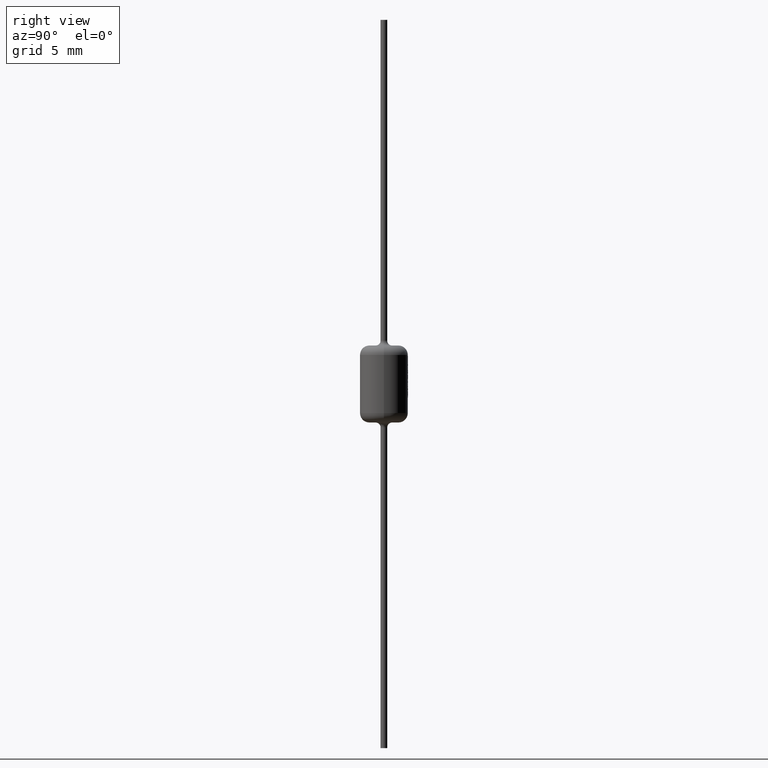
[diagram: clean part render]
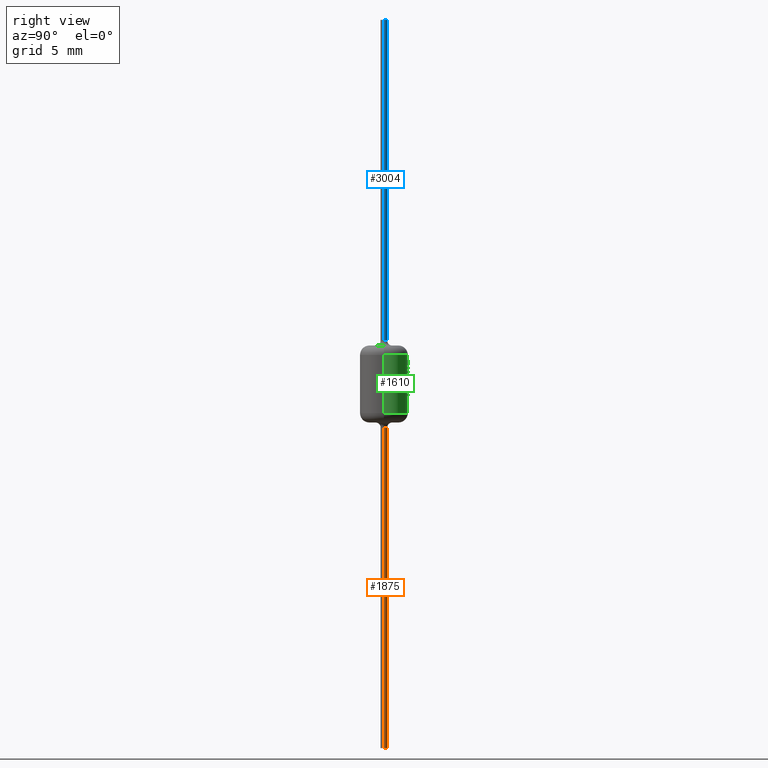
[diagram: same view with three faces highlighted in distinct colors, each labeled with its STEP entity id]
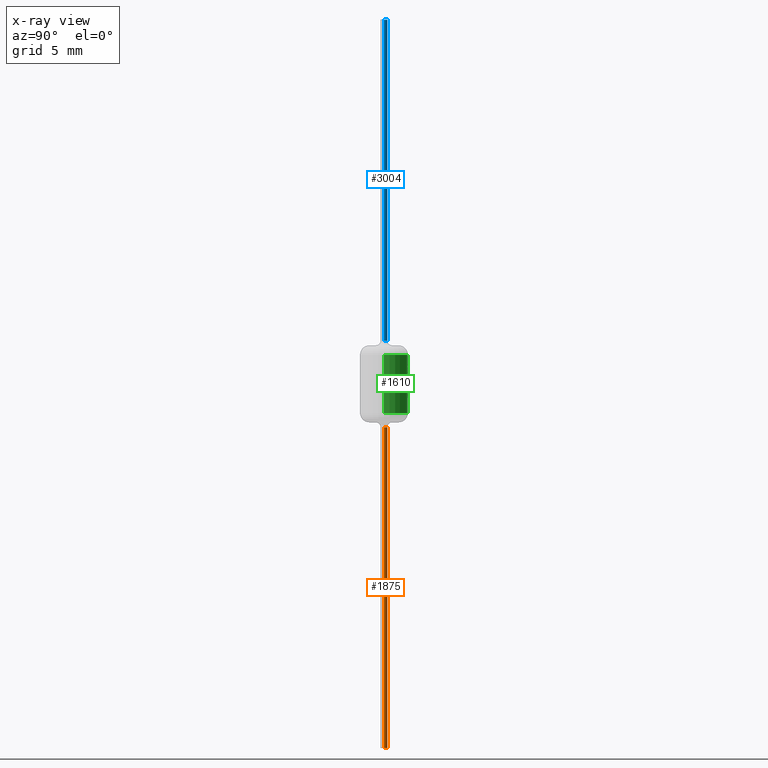
[diagram: x-ray of the same camera — body ghosted, the three highlighted faces saturated]
A machine part, right view with three faces highlighted in distinct colors.
The next image is the same camera in x-ray (body ghosted, the three faces saturated) — at least one of them is partly hidden behind the body in this view.
Their STEP definitions:

[orange] entity #1875 — the highlighted cylindrical surface (edge-blend (fillet) strip) has radius 0.2675 mm, axis along (0, 0, -1).
#415 = DIRECTION ( 'NONE',  ( -1.000000000000000000, 0.0000000000000000000, 0.0000000000000000000 ) ) ;
#472 = VECTOR ( 'NONE', #3190, 1000.000000000000000 ) ;
#641 = VERTEX_POINT ( 'NONE', #1806 ) ;
#819 = CIRCLE ( 'NONE', #3242, 0.2675000000000000200 ) ;
#860 = DIRECTION ( 'NONE',  ( -1.000000000000000000, 0.0000000000000000000, 0.0000000000000000000 ) ) ;
#1002 = ORIENTED_EDGE ( 'NONE', *, *, #1378, .T. ) ;
#1010 = EDGE_CURVE ( 'NONE', #2517, #641, #1529, .T. ) ;
#1061 = DIRECTION ( 'NONE',  ( 0.0000000000000000000, 0.0000000000000000000, -1.000000000000000000 ) ) ;
#1077 = CYLINDRICAL_SURFACE ( 'NONE', #2845, 0.2675000000000000200 ) ;
#1328 = VECTOR ( 'NONE', #1061, 1000.000000000000000 ) ;
#1378 = EDGE_CURVE ( 'NONE', #641, #1455, #2478, .T. ) ;
#1455 = VERTEX_POINT ( 'NONE', #2995 ) ;
#1529 = CIRCLE ( 'NONE', #2997, 0.2675000000000000200 ) ;
#1566 = CARTESIAN_POINT ( 'NONE',  ( -0.2675000000000000200, 0.0000000000000000000, 28.83100000000000000 ) ) ;
#1668 = FACE_OUTER_BOUND ( 'NONE', #2488, .T. ) ;
#1758 = CARTESIAN_POINT ( 'NONE',  ( 0.0000000000000000000, 0.0000000000000000000, -28.83100000000000000 ) ) ;
#1786 = DIRECTION ( 'NONE',  ( -1.000000000000000000, 0.0000000000000000000, 0.0000000000000000000 ) ) ;
#1806 = CARTESIAN_POINT ( 'NONE',  ( 0.2675000000000000200, 0.0000000000000000000, -3.430999999999999600 ) ) ;
#1875 = ADVANCED_FACE ( 'NONE', ( #1668 ), #1077, .T. ) ;
#1914 = VERTEX_POINT ( 'NONE', #1953 ) ;
#1929 = ORIENTED_EDGE ( 'NONE', *, *, #1010, .T. ) ;
#1953 = CARTESIAN_POINT ( 'NONE',  ( -0.2675000000000000200, 0.0000000000000000000, -28.83100000000000000 ) ) ;
#2062 = DIRECTION ( 'NONE',  ( 0.0000000000000000000, 0.0000000000000000000, -1.000000000000000000 ) ) ;
#2103 = ORIENTED_EDGE ( 'NONE', *, *, #3196, .F. ) ;
#2242 = DIRECTION ( 'NONE',  ( 0.0000000000000000000, 0.0000000000000000000, -1.000000000000000000 ) ) ;
#2306 = DIRECTION ( 'NONE',  ( 0.0000000000000000000, 0.0000000000000000000, -1.000000000000000000 ) ) ;
#2307 = CARTESIAN_POINT ( 'NONE',  ( 0.0000000000000000000, 0.0000000000000000000, -3.430999999999999600 ) ) ;
#2322 = LINE ( 'NONE', #1566, #472 ) ;
#2402 = CARTESIAN_POINT ( 'NONE',  ( 0.2675000000000000200, 3.275930187719170000E-017, 28.83100000000000000 ) ) ;
#2462 = ORIENTED_EDGE ( 'NONE', *, *, #2832, .F. ) ;
#2478 = LINE ( 'NONE', #2402, #1328 ) ;
#2488 = EDGE_LOOP ( 'NONE', ( #1929, #1002, #2103, #2462 ) ) ;
#2496 = CARTESIAN_POINT ( 'NONE',  ( 0.0000000000000000000, 0.0000000000000000000, 28.83100000000000000 ) ) ;
#2517 = VERTEX_POINT ( 'NONE', #3023 ) ;
#2832 = EDGE_CURVE ( 'NONE', #2517, #1914, #2322, .T. ) ;
#2845 = AXIS2_PLACEMENT_3D ( 'NONE', #2496, #2242, #860 ) ;
#2995 = CARTESIAN_POINT ( 'NONE',  ( 0.2675000000000000200, 3.275930187719170000E-017, -28.83100000000000000 ) ) ;
#2997 = AXIS2_PLACEMENT_3D ( 'NONE', #2307, #2062, #1786 ) ;
#3023 = CARTESIAN_POINT ( 'NONE',  ( -0.2675000000000000200, 5.608882340094877600E-017, -3.430999999999999600 ) ) ;
#3190 = DIRECTION ( 'NONE',  ( 0.0000000000000000000, 0.0000000000000000000, -1.000000000000000000 ) ) ;
#3196 = EDGE_CURVE ( 'NONE', #1914, #1455, #819, .T. ) ;
#3242 = AXIS2_PLACEMENT_3D ( 'NONE', #1758, #2306, #415 ) ;

[blue] entity #3004 — the highlighted cylindrical surface (edge-blend (fillet) strip) has radius 0.2675 mm, axis along (0, 0, -1).
#60 = EDGE_CURVE ( 'NONE', #1280, #3139, #1071, .T. ) ;
#387 = DIRECTION ( 'NONE',  ( -1.000000000000000000, 0.0000000000000000000, 0.0000000000000000000 ) ) ;
#605 = FACE_OUTER_BOUND ( 'NONE', #2931, .T. ) ;
#649 = VECTOR ( 'NONE', #2967, 1000.000000000000000 ) ;
#769 = LINE ( 'NONE', #1812, #1827 ) ;
#771 = EDGE_CURVE ( 'NONE', #867, #1933, #1613, .T. ) ;
#843 = ORIENTED_EDGE ( 'NONE', *, *, #3279, .F. ) ;
#867 = VERTEX_POINT ( 'NONE', #1152 ) ;
#878 = CARTESIAN_POINT ( 'NONE',  ( 0.0000000000000000000, 0.0000000000000000000, 28.83100000000000000 ) ) ;
#965 = CARTESIAN_POINT ( 'NONE',  ( -0.2675000000000000200, 5.608882340094877600E-017, 3.430999999999999600 ) ) ;
#1047 = AXIS2_PLACEMENT_3D ( 'NONE', #1756, #1412, #2044 ) ;
#1071 = CIRCLE ( 'NONE', #1047, 0.2675000000000000200 ) ;
#1152 = CARTESIAN_POINT ( 'NONE',  ( -0.2675000000000000200, 0.0000000000000000000, 28.83100000000000000 ) ) ;
#1280 = VERTEX_POINT ( 'NONE', #1474 ) ;
#1353 = LINE ( 'NONE', #3467, #649 ) ;
#1412 = DIRECTION ( 'NONE',  ( -0.0000000000000000000, -0.0000000000000000000, 1.000000000000000000 ) ) ;
#1474 = CARTESIAN_POINT ( 'NONE',  ( 0.2675000000000000200, 0.0000000000000000000, 3.430999999999999600 ) ) ;
#1480 = AXIS2_PLACEMENT_3D ( 'NONE', #1998, #2511, #387 ) ;
#1510 = ORIENTED_EDGE ( 'NONE', *, *, #60, .T. ) ;
#1613 = CIRCLE ( 'NONE', #2201, 0.2675000000000000200 ) ;
#1665 = DIRECTION ( 'NONE',  ( -1.000000000000000000, 0.0000000000000000000, 0.0000000000000000000 ) ) ;
#1756 = CARTESIAN_POINT ( 'NONE',  ( 0.0000000000000000000, 0.0000000000000000000, 3.430999999999999600 ) ) ;
#1812 = CARTESIAN_POINT ( 'NONE',  ( -0.2675000000000000200, 0.0000000000000000000, 28.83100000000000000 ) ) ;
#1827 = VECTOR ( 'NONE', #3187, 1000.000000000000000 ) ;
#1933 = VERTEX_POINT ( 'NONE', #1973 ) ;
#1973 = CARTESIAN_POINT ( 'NONE',  ( 0.2675000000000000200, 3.275930187719170000E-017, 28.83100000000000000 ) ) ;
#1998 = CARTESIAN_POINT ( 'NONE',  ( 0.0000000000000000000, 0.0000000000000000000, 28.83100000000000000 ) ) ;
#2044 = DIRECTION ( 'NONE',  ( -1.000000000000000000, 0.0000000000000000000, 0.0000000000000000000 ) ) ;
#2181 = DIRECTION ( 'NONE',  ( 0.0000000000000000000, 0.0000000000000000000, -1.000000000000000000 ) ) ;
#2201 = AXIS2_PLACEMENT_3D ( 'NONE', #878, #2181, #1665 ) ;
#2342 = ORIENTED_EDGE ( 'NONE', *, *, #3356, .T. ) ;
#2511 = DIRECTION ( 'NONE',  ( 0.0000000000000000000, 0.0000000000000000000, -1.000000000000000000 ) ) ;
#2931 = EDGE_LOOP ( 'NONE', ( #3260, #2342, #1510, #843 ) ) ;
#2967 = DIRECTION ( 'NONE',  ( 0.0000000000000000000, 0.0000000000000000000, -1.000000000000000000 ) ) ;
#3004 = ADVANCED_FACE ( 'NONE', ( #605 ), #3439, .T. ) ;
#3139 = VERTEX_POINT ( 'NONE', #965 ) ;
#3187 = DIRECTION ( 'NONE',  ( 0.0000000000000000000, 0.0000000000000000000, -1.000000000000000000 ) ) ;
#3260 = ORIENTED_EDGE ( 'NONE', *, *, #771, .T. ) ;
#3279 = EDGE_CURVE ( 'NONE', #867, #3139, #769, .T. ) ;
#3356 = EDGE_CURVE ( 'NONE', #1933, #1280, #1353, .T. ) ;
#3439 = CYLINDRICAL_SURFACE ( 'NONE', #1480, 0.2675000000000000200 ) ;
#3467 = CARTESIAN_POINT ( 'NONE',  ( 0.2675000000000000200, 3.275930187719170000E-017, 28.83100000000000000 ) ) ;

[green] entity #1610 — the highlighted cylindrical surface (edge-blend (fillet) strip) has radius 1.905 mm, axis along (0, 0, 1).
#7 = LINE ( 'NONE', #2569, #982 ) ;
#16 = EDGE_CURVE ( 'NONE', #997, #1635, #3199, .T. ) ;
#22 = ORIENTED_EDGE ( 'NONE', *, *, #2782, .F. ) ;
#31 = AXIS2_PLACEMENT_3D ( 'NONE', #2025, #918, #2275 ) ;
#35 = CARTESIAN_POINT ( 'NONE',  ( 0.1149837547947500800, 1.901526685622187500, 0.3682806794264069600 ) ) ;
#36 = EDGE_CURVE ( 'NONE', #3461, #1936, #7, .T. ) ;
#46 = CARTESIAN_POINT ( 'NONE',  ( 0.2274894810547116200, 1.891368165114729200, 0.8988947388299667300 ) ) ;
#57 = VERTEX_POINT ( 'NONE', #2754 ) ;
#63 = VERTEX_POINT ( 'NONE', #1769 ) ;
#71 = CARTESIAN_POINT ( 'NONE',  ( -0.3635704204518663800, 1.869984371424652500, 1.196796614759257200 ) ) ;
#76 = B_SPLINE_CURVE_WITH_KNOTS ( 'NONE', 3,
 ( #3305, #1857, #3447, #2654 ),
 .UNSPECIFIED., .F., .F.,
 ( 4, 4 ),
 ( 0.0000000000000000000, 1.000000000000000000 ),
 .UNSPECIFIED. ) ;
#85 = CARTESIAN_POINT ( 'NONE',  ( -0.3635704204518863100, 1.869984371424648700, -0.9832646268548377300 ) ) ;
#88 = CARTESIAN_POINT ( 'NONE',  ( 0.2274894810547199700, 1.891368165114728100, -0.8202751665519958400 ) ) ;
#92 = CARTESIAN_POINT ( 'NONE',  ( 0.0000000000000000000, 0.0000000000000000000, -2.299999999999999800 ) ) ;
#95 = ORIENTED_EDGE ( 'NONE', *, *, #182, .F. ) ;
#107 = ORIENTED_EDGE ( 'NONE', *, *, #3263, .F. ) ;
#108 = CARTESIAN_POINT ( 'NONE',  ( -0.3019212522914002700, 1.880922262459241900, -0.3017842905843467500 ) ) ;
#109 = ORIENTED_EDGE ( 'NONE', *, *, #2057, .F. ) ;
#122 = CARTESIAN_POINT ( 'NONE',  ( -0.03253915576601066500, 1.904722080341915800, -0.8697393420165240300 ) ) ;
#127 = LINE ( 'NONE', #3154, #2668 ) ;
#129 = EDGE_CURVE ( 'NONE', #3216, #2905, #2543, .T. ) ;
#134 = CARTESIAN_POINT ( 'NONE',  ( 0.1149621264077198600, 1.901527993349510400, -0.8523400284887804300 ) ) ;
#140 = VECTOR ( 'NONE', #2028, 1000.000000000000000 ) ;
#156 = FACE_BOUND ( 'NONE', #2984, .T. ) ;
#161 = CARTESIAN_POINT ( 'NONE',  ( -0.3635704204518830400, 1.869984371424649300, 0.2892940074688591400 ) ) ;
#163 = VERTEX_POINT ( 'NONE', #2029 ) ;
#166 = VERTEX_POINT ( 'NONE', #1148 ) ;
#178 = LINE ( 'NONE', #2933, #2578 ) ;
#182 = EDGE_CURVE ( 'NONE', #2375, #1347, #734, .T. ) ;
#190 = CARTESIAN_POINT ( 'NONE',  ( 0.2274894810547166400, 1.891368165114728500, -0.02134404747519951700 ) ) ;
#192 = VERTEX_POINT ( 'NONE', #457 ) ;
#193 = CARTESIAN_POINT ( 'NONE',  ( -0.3019212522914002700, 1.880922262459241900, -0.3017842905843467500 ) ) ;
#194 = ORIENTED_EDGE ( 'NONE', *, *, #257, .F. ) ;
#207 = CARTESIAN_POINT ( 'NONE',  ( -0.1125091817650242500, 1.901674705100366200, 1.269387648637523300 ) ) ;
#219 = CARTESIAN_POINT ( 'NONE',  ( -0.2520177396801033300, 1.888256354123171400, -0.6783902289875902700 ) ) ;
#222 = EDGE_CURVE ( 'NONE', #63, #2206, #2203, .T. ) ;
#236 = VERTEX_POINT ( 'NONE', #1831 ) ;
#239 = CARTESIAN_POINT ( 'NONE',  ( -0.3635704204518830900, 1.869984371424649300, -0.2104154892780940000 ) ) ;
#257 = EDGE_CURVE ( 'NONE', #3218, #1191, #1621, .T. ) ;
#264 = LINE ( 'NONE', #3147, #3043 ) ;
#268 = EDGE_CURVE ( 'NONE', #166, #1749, #2417, .T. ) ;
#270 = VECTOR ( 'NONE', #1518, 1000.000000000000000 ) ;
#277 = VERTEX_POINT ( 'NONE', #2369 ) ;
#282 = CARTESIAN_POINT ( 'NONE',  ( 0.2274894810547149500, 1.891368165114728700, 0.2591377257513240400 ) ) ;
#285 = ORIENTED_EDGE ( 'NONE', *, *, #1155, .F. ) ;
#302 = B_SPLINE_CURVE_WITH_KNOTS ( 'NONE', 3,
 ( #2696, #3462, #839, #1103 ),
 .UNSPECIFIED., .F., .F.,
 ( 4, 4 ),
 ( 0.0000000000000000000, 1.000000000000000000 ),
 .UNSPECIFIED. ) ;
#303 = B_SPLINE_CURVE_WITH_KNOTS ( 'NONE', 3,
 ( #282, #2793, #1729, #632 ),
 .UNSPECIFIED., .F., .F.,
 ( 4, 4 ),
 ( 0.0000000000000000000, 1.000000000000000000 ),
 .UNSPECIFIED. ) ;
#308 = LINE ( 'NONE', #2228, #1062 ) ;
#312 = CARTESIAN_POINT ( 'NONE',  ( -0.1847288567741889600, 1.898179352055030100, 1.006394306859955000 ) ) ;
#328 = VERTEX_POINT ( 'NONE', #2105 ) ;
#331 = ORIENTED_EDGE ( 'NONE', *, *, #1168, .F. ) ;
#334 = EDGE_CURVE ( 'NONE', #2132, #1745, #1105, .T. ) ;
#343 = EDGE_CURVE ( 'NONE', #1547, #2630, #178, .T. ) ;
#361 = CARTESIAN_POINT ( 'NONE',  ( 0.05165169506233998500, 1.912517535936876000, -0.2000902950060492500 ) ) ;
#366 = CARTESIAN_POINT ( 'NONE',  ( -0.3019212522914002700, 1.880922262459241900, -0.3017842905843467500 ) ) ;
#385 = CARTESIAN_POINT ( 'NONE',  ( -0.09437113747964331900, 1.902661054526212400, 1.098803594777036500 ) ) ;
#395 = LINE ( 'NONE', #134, #1272 ) ;
#401 = VERTEX_POINT ( 'NONE', #46 ) ;
#403 = DIRECTION ( 'NONE',  ( 0.0000000000000000000, 0.0000000000000000000, -1.000000000000000000 ) ) ;
#407 = EDGE_CURVE ( 'NONE', #192, #3461, #3440, .T. ) ;
#416 = CARTESIAN_POINT ( 'NONE',  ( 0.01665185863045904500, 1.905562430803704700, 0.6694414559119382700 ) ) ;
#435 = CARTESIAN_POINT ( 'NONE',  ( 0.1149621264077181200, 1.901527993349510400, -0.5727990027040043000 ) ) ;
#443 = VERTEX_POINT ( 'NONE', #2175 ) ;
#444 = CARTESIAN_POINT ( 'NONE',  ( 0.2274894810547549400, 1.891368165114724100, 1.536547282467916300 ) ) ;
#446 = B_SPLINE_CURVE_WITH_KNOTS ( 'NONE', 3,
 ( #3003, #1092, #2144, #2411 ),
 .UNSPECIFIED., .F., .F.,
 ( 4, 4 ),
 ( 0.0000000000000000000, 1.000000000000000000 ),
 .UNSPECIFIED. ) ;
#450 = VERTEX_POINT ( 'NONE', #602 ) ;
#457 = CARTESIAN_POINT ( 'NONE',  ( -0.3635704204518863100, 1.869984371424648700, -1.495731830144352500 ) ) ;
#460 = ORIENTED_EDGE ( 'NONE', *, *, #2080, .F. ) ;
#466 = CARTESIAN_POINT ( 'NONE',  ( -0.06912126097059494200, 1.904097133095393300, -0.8801916933679103700 ) ) ;
#470 = CARTESIAN_POINT ( 'NONE',  ( -0.3635704204518663800, 1.869984371424652500, 1.196796614759256600 ) ) ;
#481 = VECTOR ( 'NONE', #2860, 1000.000000000000000 ) ;
#482 = EDGE_CURVE ( 'NONE', #2905, #2443, #2391, .T. ) ;
#492 = CARTESIAN_POINT ( 'NONE',  ( 0.2274894810547166400, 1.891368165114728500, -0.02134404747519951700 ) ) ;
#506 = CARTESIAN_POINT ( 'NONE',  ( -0.2504265299420152500, 1.888468043971409400, -1.300186369124832300 ) ) ;
#511 = CARTESIAN_POINT ( 'NONE',  ( -0.1421707266609255300, 1.899687470212061900, -0.6462495294450708600 ) ) ;
#513 = VECTOR ( 'NONE', #1748, 1000.000000000000000 ) ;
#517 = DIRECTION ( 'NONE',  ( 1.697620821413869600E-013, 3.328668277282097200E-014, 1.000000000000000000 ) ) ;
#520 = CARTESIAN_POINT ( 'NONE',  ( -0.2520374273217125800, 1.888253726390882100, 0.5919618916668556400 ) ) ;
#523 = CARTESIAN_POINT ( 'NONE',  ( -0.2520374273217143600, 1.888253726390881800, 0.3213985938665601700 ) ) ;
#524 = EDGE_CURVE ( 'NONE', #1635, #450, #303, .T. ) ;
#549 = EDGE_CURVE ( 'NONE', #1677, #3456, #308, .T. ) ;
#556 = CARTESIAN_POINT ( 'NONE',  ( 0.2274894810547149800, 1.891368165114728700, 0.1369705656588935700 ) ) ;
#578 = ORIENTED_EDGE ( 'NONE', *, *, #2787, .F. ) ;
#590 = ORIENTED_EDGE ( 'NONE', *, *, #2761, .F. ) ;
#591 = CARTESIAN_POINT ( 'NONE',  ( -0.2504137341689863200, 1.888469740752958000, -1.462776519611254500 ) ) ;
#602 = CARTESIAN_POINT ( 'NONE',  ( -0.2994071858322734900, 1.881324091450486500, 0.1073361184175773700 ) ) ;
#611 = DIRECTION ( 'NONE',  ( 0.0000000000000000000, 0.0000000000000000000, 1.000000000000000000 ) ) ;
#614 = CARTESIAN_POINT ( 'NONE',  ( -0.03253915576724225600, 1.904722080341894500, 0.4005730541792114600 ) ) ;
#628 = CARTESIAN_POINT ( 'NONE',  ( -0.3635704204518863100, 1.869984371424648700, -0.4708732606941703500 ) ) ;
#632 = CARTESIAN_POINT ( 'NONE',  ( -0.2994071858322734900, 1.881324091450486500, 0.1073361184175773700 ) ) ;
#633 = CARTESIAN_POINT ( 'NONE',  ( 0.2274894810547149800, 1.891368165114728700, 0.3648409027859991200 ) ) ;
#635 = B_SPLINE_CURVE_WITH_KNOTS ( 'NONE', 3,
 ( #2889, #2127, #2139, #506 ),
 .UNSPECIFIED., .F., .F.,
 ( 4, 4 ),
 ( 0.0000000000000000000, 1.000000000000000000 ),
 .UNSPECIFIED. ) ;
#651 = EDGE_CURVE ( 'NONE', #2704, #192, #1203, .T. ) ;
#660 = DIRECTION ( 'NONE',  ( 1.000000000000000000, 0.0000000000000000000, 0.0000000000000000000 ) ) ;
#661 = CARTESIAN_POINT ( 'NONE',  ( 0.05842908927818012100, 1.904103737070573300, 0.0000000000000000000 ) ) ;
#664 = LINE ( 'NONE', #1042, #3407 ) ;
#666 = CARTESIAN_POINT ( 'NONE',  ( -0.03253915576601061600, 1.904722080341915800, -0.6149285983065998500 ) ) ;
#681 = ORIENTED_EDGE ( 'NONE', *, *, #2185, .F. ) ;
#682 = CARTESIAN_POINT ( 'NONE',  ( 0.2274894810547149500, 1.891368165114728700, 0.2591377257513240400 ) ) ;
#691 = DIRECTION ( 'NONE',  ( 0.0000000000000000000, 0.0000000000000000000, 1.000000000000000000 ) ) ;
#693 = CARTESIAN_POINT ( 'NONE',  ( -0.3635704204518763700, 1.869984371424650700, 1.365885584869172900 ) ) ;
#698 = B_SPLINE_CURVE_WITH_KNOTS ( 'NONE', 3,
 ( #3040, #3289, #2272, #3049 ),
 .UNSPECIFIED., .F., .F.,
 ( 4, 4 ),
 ( 0.0000000000000000000, 1.000000000000000000 ),
 .UNSPECIFIED. ) ;
#719 = ORIENTED_EDGE ( 'NONE', *, *, #3390, .F. ) ;
#725 = CARTESIAN_POINT ( 'NONE',  ( -0.03253915576724051400, 1.904722080341894500, 0.6554235223492437300 ) ) ;
#734 = B_SPLINE_CURVE_WITH_KNOTS ( 'NONE', 3,
 ( #207, #2070, #3134, #470 ),
 .UNSPECIFIED., .F., .F.,
 ( 4, 4 ),
 ( 0.0000000000000000000, 1.000000000000000000 ),
 .UNSPECIFIED. ) ;
#759 = EDGE_CURVE ( 'NONE', #1467, #2928, #3230, .T. ) ;
#761 = CARTESIAN_POINT ( 'NONE',  ( 0.2274894810547200300, 1.891368165114728100, -0.9932896355835680900 ) ) ;
#776 = CARTESIAN_POINT ( 'NONE',  ( -0.2247442919733038400, 1.896975545614095300, -0.1402729897642114900 ) ) ;
#788 = CARTESIAN_POINT ( 'NONE',  ( 1.905000000000000000, 0.0000000000000000000, 2.299999999999999800 ) ) ;
#808 = CARTESIAN_POINT ( 'NONE',  ( -0.09437113747964331900, 1.902661054526212400, 1.098803594777036500 ) ) ;
#837 = ORIENTED_EDGE ( 'NONE', *, *, #2261, .F. ) ;
#839 = CARTESIAN_POINT ( 'NONE',  ( 0.03091040694626801000, 1.915012251115528500, -0.4285560117649053200 ) ) ;
#848 = EDGE_CURVE ( 'NONE', #1564, #993, #2567, .T. ) ;
#875 = FACE_BOUND ( 'NONE', #959, .T. ) ;
#880 = VERTEX_POINT ( 'NONE', #366 ) ;
#882 = DIRECTION ( 'NONE',  ( -5.899060110415633000E-014, -1.025923497463588400E-014, 1.000000000000000000 ) ) ;
#909 = CARTESIAN_POINT ( 'NONE',  ( 1.905000000000000000, 0.0000000000000000000, -2.299999999999999800 ) ) ;
#918 = DIRECTION ( 'NONE',  ( -0.0000000000000000000, -0.0000000000000000000, -1.000000000000000000 ) ) ;
#919 = CARTESIAN_POINT ( 'NONE',  ( 0.2274894810547167000, 1.891368165114728500, -0.1492315298233003500 ) ) ;
#927 = B_SPLINE_CURVE_WITH_KNOTS ( 'NONE', 3,
 ( #1743, #1985, #2828, #1491 ),
 .UNSPECIFIED., .F., .F.,
 ( 4, 4 ),
 ( 0.0000000000000000000, 1.000000000000000000 ),
 .UNSPECIFIED. ) ;
#929 = CARTESIAN_POINT ( 'NONE',  ( 0.2274894810547116200, 1.891368165114729200, 0.8988947388299667300 ) ) ;
#932 = EDGE_CURVE ( 'NONE', #2443, #948, #2877, .T. ) ;
#933 = LINE ( 'NONE', #2248, #1783 ) ;
#948 = VERTEX_POINT ( 'NONE', #2021 ) ;
#950 = EDGE_CURVE ( 'NONE', #2442, #3216, #1495, .T. ) ;
#959 = EDGE_LOOP ( 'NONE', ( #2773, #460, #994, #2011, #2040, #1372, #590, #3093, #2208, #2874, #1005, #681, #2777, #2055, #285, #1112, #3203, #1674, #1238, #2259, #3143, #1815, #331, #2433 ) ) ;
#960 = CARTESIAN_POINT ( 'NONE',  ( 0.03091040148991375600, 1.915012251771805600, 1.479646683734159300 ) ) ;
#961 = AXIS2_PLACEMENT_3D ( 'NONE', #1965, #611, #660 ) ;
#962 = CARTESIAN_POINT ( 'NONE',  ( -0.03253915576724051400, 1.904722080341894500, 0.6554235223492437300 ) ) ;
#972 = CARTESIAN_POINT ( 'NONE',  ( 0.2274894810547200300, 1.891368165114728100, -0.9932896355835680900 ) ) ;
#974 = VECTOR ( 'NONE', #2142, 1000.000000000000000 ) ;
#982 = VECTOR ( 'NONE', #3087, 1000.000000000000000 ) ;
#983 = CARTESIAN_POINT ( 'NONE',  ( -0.3635704204518830400, 1.869984371424649300, -0.02283770277009813600 ) ) ;
#990 = VERTEX_POINT ( 'NONE', #1759 ) ;
#993 = VERTEX_POINT ( 'NONE', #3393 ) ;
#994 = ORIENTED_EDGE ( 'NONE', *, *, #2280, .F. ) ;
#997 = VERTEX_POINT ( 'NONE', #1801 ) ;
#1005 = ORIENTED_EDGE ( 'NONE', *, *, #16, .F. ) ;
#1017 = CARTESIAN_POINT ( 'NONE',  ( -0.1125091817650242500, 1.901674705100366200, 1.269387648637523300 ) ) ;
#1042 = CARTESIAN_POINT ( 'NONE',  ( -0.3635704204518796500, 1.869984371424650000, 0.8215774211453394900 ) ) ;
#1062 = VECTOR ( 'NONE', #2531, 1000.000000000000000 ) ;
#1063 = CARTESIAN_POINT ( 'NONE',  ( 0.2274894810547200300, 1.891368165114728100, -0.9932896355835680900 ) ) ;
#1092 = CARTESIAN_POINT ( 'NONE',  ( -0.1253400397738135000, 1.909026364856785800, 0.1172158699854383300 ) ) ;
#1103 = CARTESIAN_POINT ( 'NONE',  ( 0.2274894810547183300, 1.891368165114728300, -0.3716054461971145500 ) ) ;
#1105 = LINE ( 'NONE', #1856, #974 ) ;
#1107 = VERTEX_POINT ( 'NONE', #1595 ) ;
#1112 = ORIENTED_EDGE ( 'NONE', *, *, #268, .F. ) ;
#1117 = ORIENTED_EDGE ( 'NONE', *, *, #759, .T. ) ;
#1148 = CARTESIAN_POINT ( 'NONE',  ( -0.2520374273217125800, 1.888253726390882100, 0.5919618916668556400 ) ) ;
#1155 = EDGE_CURVE ( 'NONE', #1749, #1999, #2042, .T. ) ;
#1156 = ORIENTED_EDGE ( 'NONE', *, *, #549, .F. ) ;
#1168 = EDGE_CURVE ( 'NONE', #3298, #1582, #698, .T. ) ;
#1169 = VERTEX_POINT ( 'NONE', #1486 ) ;
#1191 = VERTEX_POINT ( 'NONE', #1750 ) ;
#1192 = CARTESIAN_POINT ( 'NONE',  ( 0.2274894810547116200, 1.891368165114729200, 1.145837355545711100 ) ) ;
#1201 = CARTESIAN_POINT ( 'NONE',  ( 0.1900917931355162500, 1.895866274353481300, -0.8309634576080621200 ) ) ;
#1203 = B_SPLINE_CURVE_WITH_KNOTS ( 'NONE', 3,
 ( #3130, #3386, #3466, #2688 ),
 .UNSPECIFIED., .F., .F.,
 ( 4, 4 ),
 ( 0.0000000000000000000, 1.000000000000000000 ),
 .UNSPECIFIED. ) ;
#1214 = EDGE_CURVE ( 'NONE', #2224, #2247, #3106, .T. ) ;
#1215 = CARTESIAN_POINT ( 'NONE',  ( -0.1056853162126689900, 1.902418002153388100, -0.8906440349491691100 ) ) ;
#1216 = CARTESIAN_POINT ( 'NONE',  ( -0.2504265299434510500, 1.888468043971218900, -1.131061285869689300 ) ) ;
#1237 = LINE ( 'NONE', #71, #3018 ) ;
#1238 = ORIENTED_EDGE ( 'NONE', *, *, #482, .F. ) ;
#1239 = CARTESIAN_POINT ( 'NONE',  ( -0.3635704204518797100, 1.869984371424650000, 0.8215774211453394900 ) ) ;
#1260 = CARTESIAN_POINT ( 'NONE',  ( -0.3635704204518763700, 1.869984371424650700, 1.365885584869172900 ) ) ;
#1272 = VECTOR ( 'NONE', #691, 1000.000000000000000 ) ;
#1277 = CARTESIAN_POINT ( 'NONE',  ( 0.2274894810547183300, 1.891368165114728300, -0.3716054461971145500 ) ) ;
#1284 = EDGE_CURVE ( 'NONE', #2206, #2132, #2895, .T. ) ;
#1301 = CARTESIAN_POINT ( 'NONE',  ( 0.1207752180269974800, 1.904203515082586000, 1.188980826883839500 ) ) ;
#1310 = CIRCLE ( 'NONE', #1633, 1.905000000000000000 ) ;
#1313 = ORIENTED_EDGE ( 'NONE', *, *, #1284, .F. ) ;
#1322 = ORIENTED_EDGE ( 'NONE', *, *, #2484, .T. ) ;
#1340 = EDGE_CURVE ( 'NONE', #443, #3218, #3241, .T. ) ;
#1347 = VERTEX_POINT ( 'NONE', #3207 ) ;
#1351 = CARTESIAN_POINT ( 'NONE',  ( -0.08293185352964101100, 1.908441521292599400, -0.007613100098196552700 ) ) ;
#1359 = DIRECTION ( 'NONE',  ( 1.078623373963785800E-014, -1.369680474874648500E-015, -1.000000000000000000 ) ) ;
#1372 = ORIENTED_EDGE ( 'NONE', *, *, #1615, .F. ) ;
#1373 = CARTESIAN_POINT ( 'NONE',  ( -0.2504179994285787900, 1.888469175173558700, -1.408579802782446300 ) ) ;
#1380 = EDGE_CURVE ( 'NONE', #1936, #2778, #302, .T. ) ;
#1403 = VECTOR ( 'NONE', #2892, 1000.000000000000000 ) ;
#1407 = EDGE_CURVE ( 'NONE', #2332, #3322, #3403, .T. ) ;
#1411 = ORIENTED_EDGE ( 'NONE', *, *, #651, .F. ) ;
#1423 = B_SPLINE_CURVE_WITH_KNOTS ( 'NONE', 3,
 ( #1483, #3320, #2225, #628 ),
 .UNSPECIFIED., .F., .F.,
 ( 4, 4 ),
 ( 0.0000000000000000000, 1.000000000000000000 ),
 .UNSPECIFIED. ) ;
#1432 = CARTESIAN_POINT ( 'NONE',  ( -0.2512588497506038600, 1.888357484805777800, -0.9505244486196152700 ) ) ;
#1444 = VECTOR ( 'NONE', #2153, 1000.000000000000000 ) ;
#1448 = CARTESIAN_POINT ( 'NONE',  ( -0.2512588497506038600, 1.888357484805777800, -0.9505244486196152700 ) ) ;
#1467 = VERTEX_POINT ( 'NONE', #2199 ) ;
#1468 = CARTESIAN_POINT ( 'NONE',  ( 0.1149837547947500400, 1.901526685622187500, 0.6974772803471340800 ) ) ;
#1481 = DIRECTION ( 'NONE',  ( 1.269617185197446700E-014, 2.497607577437599900E-015, 1.000000000000000000 ) ) ;
#1482 = ORIENTED_EDGE ( 'NONE', *, *, #1877, .F. ) ;
#1483 = CARTESIAN_POINT ( 'NONE',  ( 0.2274894810547183300, 1.891368165114728300, -0.3001375311471065600 ) ) ;
#1486 = CARTESIAN_POINT ( 'NONE',  ( -0.2512588497506038600, 1.888357484805777800, -0.9505244486196152700 ) ) ;
#1491 = CARTESIAN_POINT ( 'NONE',  ( -0.09437113747964331900, 1.902661054526212400, 1.098803594777036500 ) ) ;
#1495 = B_SPLINE_CURVE_WITH_KNOTS ( 'NONE', 3,
 ( #1468, #1499, #416, #725 ),
 .UNSPECIFIED., .F., .F.,
 ( 4, 4 ),
 ( 0.0000000000000000000, 1.000000000000000000 ),
 .UNSPECIFIED. ) ;
#1499 = CARTESIAN_POINT ( 'NONE',  ( 0.06587526409396442200, 1.904496235666252000, 0.6834593467844395400 ) ) ;
#1518 = DIRECTION ( 'NONE',  ( -6.647293633293802800E-015, 0.0000000000000000000, -1.000000000000000000 ) ) ;
#1519 = B_SPLINE_CURVE_WITH_KNOTS ( 'NONE', 3,
 ( #2553, #2304, #2831, #1448 ),
 .UNSPECIFIED., .F., .F.,
 ( 4, 4 ),
 ( 0.0000000000000000000, 1.000000000000000000 ),
 .UNSPECIFIED. ) ;
#1530 = CARTESIAN_POINT ( 'NONE',  ( -0.3635704204518830400, 1.869984371424649300, -0.02283770277009813600 ) ) ;
#1542 = VECTOR ( 'NONE', #3378, 1000.000000000000000 ) ;
#1543 = CARTESIAN_POINT ( 'NONE',  ( -0.3635704204518797100, 1.869984371424650000, 0.8215774211453394900 ) ) ;
#1547 = VERTEX_POINT ( 'NONE', #1946 ) ;
#1557 = B_SPLINE_CURVE_WITH_KNOTS ( 'NONE', 3,
 ( #108, #1995, #361, #919 ),
 .UNSPECIFIED., .F., .F.,
 ( 4, 4 ),
 ( 0.0000000000000000000, 1.000000000000000000 ),
 .UNSPECIFIED. ) ;
#1564 = VERTEX_POINT ( 'NONE', #2222 ) ;
#1582 = VERTEX_POINT ( 'NONE', #35 ) ;
#1591 = CARTESIAN_POINT ( 'NONE',  ( -0.1789063952094467600, 1.896937824141342200, 0.6133890212822237200 ) ) ;
#1593 = FACE_BOUND ( 'NONE', #3369, .T. ) ;
#1594 = CARTESIAN_POINT ( 'NONE',  ( -0.3635704204518830900, 1.869984371424649300, 0.2300612261322432800 ) ) ;
#1595 = CARTESIAN_POINT ( 'NONE',  ( 0.2274894810547149800, 1.891368165114728700, 0.1369705656588935700 ) ) ;
#1600 = ORIENTED_EDGE ( 'NONE', *, *, #407, .F. ) ;
#1610 = ADVANCED_FACE ( 'NONE', ( #1593, #875, #156, #2863 ), #1672, .T. ) ;
#1615 = EDGE_CURVE ( 'NONE', #880, #328, #1557, .T. ) ;
#1621 = LINE ( 'NONE', #972, #1542 ) ;
#1633 = AXIS2_PLACEMENT_3D ( 'NONE', #92, #2227, #1728 ) ;
#1635 = VERTEX_POINT ( 'NONE', #682 ) ;
#1642 = CARTESIAN_POINT ( 'NONE',  ( -0.3635704204518830400, 1.869984371424649300, -0.02283770277009813600 ) ) ;
#1655 = EDGE_CURVE ( 'NONE', #2247, #2171, #927, .T. ) ;
#1656 = LINE ( 'NONE', #3280, #1787 ) ;
#1672 = CYLINDRICAL_SURFACE ( 'NONE', #961, 1.905000000000000000 ) ;
#1674 = ORIENTED_EDGE ( 'NONE', *, *, #932, .F. ) ;
#1677 = VERTEX_POINT ( 'NONE', #909 ) ;
#1680 = EDGE_CURVE ( 'NONE', #1879, #401, #76, .T. ) ;
#1682 = CARTESIAN_POINT ( 'NONE',  ( -0.06912788075980215400, 1.904097020006769900, 0.3901207028251581500 ) ) ;
#1683 = CARTESIAN_POINT ( 'NONE',  ( -0.3635704204518863100, 1.869984371424648700, -0.5424170138268080700 ) ) ;
#1701 = ORIENTED_EDGE ( 'NONE', *, *, #1655, .F. ) ;
#1724 = DIRECTION ( 'NONE',  ( 7.661068632496333700E-015, 1.482787477257354900E-015, 1.000000000000000000 ) ) ;
#1728 = DIRECTION ( 'NONE',  ( 1.000000000000000000, 0.0000000000000000000, 0.0000000000000000000 ) ) ;
#1729 = CARTESIAN_POINT ( 'NONE',  ( -0.1253419088697225500, 1.909026067395678900, 0.1579443194655128500 ) ) ;
#1743 = CARTESIAN_POINT ( 'NONE',  ( 0.2274894810547116200, 1.891368165114729200, 0.9651488430840503600 ) ) ;
#1745 = VERTEX_POINT ( 'NONE', #2349 ) ;
#1748 = DIRECTION ( 'NONE',  ( 6.593181008897325700E-015, 0.0000000000000000000, 1.000000000000000000 ) ) ;
#1749 = VERTEX_POINT ( 'NONE', #523 ) ;
#1750 = CARTESIAN_POINT ( 'NONE',  ( 0.2274894810547216900, 1.891368165114728100, -1.162454443299150800 ) ) ;
#1753 = ORIENTED_EDGE ( 'NONE', *, *, #343, .F. ) ;
#1759 = CARTESIAN_POINT ( 'NONE',  ( -0.3635704204518863100, 1.869984371424648700, -0.4708732606941703500 ) ) ;
#1762 = EDGE_CURVE ( 'NONE', #948, #166, #2958, .T. ) ;
#1769 = CARTESIAN_POINT ( 'NONE',  ( -0.03253915576601061600, 1.904722080341915800, -0.6149285983065998500 ) ) ;
#1777 = CARTESIAN_POINT ( 'NONE',  ( -0.2507039780220131600, 1.888431252054201500, -1.070882340119596400 ) ) ;
#1781 = DIRECTION ( 'NONE',  ( 0.0000000000000000000, 0.0000000000000000000, 1.000000000000000000 ) ) ;
#1783 = VECTOR ( 'NONE', #1724, 1000.000000000000000 ) ;
#1787 = VECTOR ( 'NONE', #2803, 1000.000000000000000 ) ;
#1789 = CARTESIAN_POINT ( 'NONE',  ( -0.2504265299434510500, 1.888468043971218900, -1.131061285869689300 ) ) ;
#1801 = CARTESIAN_POINT ( 'NONE',  ( 0.2274894810547149800, 1.891368165114728700, 0.3648409027859991200 ) ) ;
#1811 = CARTESIAN_POINT ( 'NONE',  ( -0.03253915576601061600, 1.904722080341915800, -0.6149285983065998500 ) ) ;
#1815 = ORIENTED_EDGE ( 'NONE', *, *, #2494, .F. ) ;
#1816 = CARTESIAN_POINT ( 'NONE',  ( -0.1270584002399952600, 1.908990839414452400, -0.2082918162457648700 ) ) ;
#1831 = CARTESIAN_POINT ( 'NONE',  ( -0.09437113747962809500, 1.902661054526213000, 1.275265063551591400 ) ) ;
#1833 = CARTESIAN_POINT ( 'NONE',  ( -0.1788866170280109200, 1.896939689382140200, -0.6569630993726821600 ) ) ;
#1844 = CARTESIAN_POINT ( 'NONE',  ( 0.1149837547947500400, 1.901526685622187500, 0.6974772803471340800 ) ) ;
#1846 = EDGE_CURVE ( 'NONE', #450, #1107, #446, .T. ) ;
#1851 = ORIENTED_EDGE ( 'NONE', *, *, #36, .F. ) ;
#1853 = CARTESIAN_POINT ( 'NONE',  ( 0.2274894810547115900, 1.891368165114729200, 1.145837355545711100 ) ) ;
#1856 = CARTESIAN_POINT ( 'NONE',  ( -0.1421707266609220900, 1.899687470212062300, -0.9010963863005554400 ) ) ;
#1857 = CARTESIAN_POINT ( 'NONE',  ( -0.1692138704847582500, 1.907772009476025300, 0.7849843871517845400 ) ) ;
#1877 = EDGE_CURVE ( 'NONE', #1347, #2223, #1237, .T. ) ;
#1879 = VERTEX_POINT ( 'NONE', #3265 ) ;
#1889 = CARTESIAN_POINT ( 'NONE',  ( 0.05842908927818012100, 1.904103737070573300, 0.0000000000000000000 ) ) ;
#1890 = ORIENTED_EDGE ( 'NONE', *, *, #848, .F. ) ;
#1896 = CARTESIAN_POINT ( 'NONE',  ( 0.01298044740557163100, 1.907985645131437600, 1.306072071648576700 ) ) ;
#1898 = DIRECTION ( 'NONE',  ( 0.0000000000000000000, 0.0000000000000000000, 1.000000000000000000 ) ) ;
#1902 = B_SPLINE_CURVE_WITH_KNOTS ( 'NONE', 3,
 ( #808, #312, #2745, #1543 ),
 .UNSPECIFIED., .F., .F.,
 ( 4, 4 ),
 ( 0.0000000000000000000, 1.000000000000000000 ),
 .UNSPECIFIED. ) ;
#1920 = EDGE_CURVE ( 'NONE', #2928, #3456, #2509, .T. ) ;
#1927 = CARTESIAN_POINT ( 'NONE',  ( -0.3635704204518830900, 1.869984371424649300, -0.2104154892780940000 ) ) ;
#1936 = VERTEX_POINT ( 'NONE', #1683 ) ;
#1942 = EDGE_CURVE ( 'NONE', #993, #2435, #395, .T. ) ;
#1946 = CARTESIAN_POINT ( 'NONE',  ( 0.2274894810547549400, 1.891368165114724100, 1.536547282467916300 ) ) ;
#1954 = LINE ( 'NONE', #1530, #2584 ) ;
#1965 = CARTESIAN_POINT ( 'NONE',  ( 0.0000000000000000000, 0.0000000000000000000, -3.049999999999999800 ) ) ;
#1985 = CARTESIAN_POINT ( 'NONE',  ( 0.1207752376690070100, 1.904203512720089600, 1.009701350243090300 ) ) ;
#1991 = CARTESIAN_POINT ( 'NONE',  ( -0.3635704204518830400, 1.869984371424649300, 0.2892940074688591400 ) ) ;
#1992 = CARTESIAN_POINT ( 'NONE',  ( -0.2509814179554843400, 1.888394398999349500, -1.010703394369613800 ) ) ;
#1995 = CARTESIAN_POINT ( 'NONE',  ( -0.1270546068889472400, 1.908991448314310400, -0.2509255254015977900 ) ) ;
#1999 = VERTEX_POINT ( 'NONE', #161 ) ;
#2011 = ORIENTED_EDGE ( 'NONE', *, *, #2983, .F. ) ;
#2018 = B_SPLINE_CURVE_WITH_KNOTS ( 'NONE', 3,
 ( #1260, #2090, #960, #444 ),
 .UNSPECIFIED., .F., .F.,
 ( 4, 4 ),
 ( 0.0000000000000000000, 1.000000000000000000 ),
 .UNSPECIFIED. ) ;
#2021 = CARTESIAN_POINT ( 'NONE',  ( -0.1421905334938335700, 1.899685987784491400, 0.6241025912100649500 ) ) ;
#2025 = CARTESIAN_POINT ( 'NONE',  ( 0.0000000000000000000, 0.0000000000000000000, 2.299999999999999800 ) ) ;
#2028 = DIRECTION ( 'NONE',  ( 6.293423074351546700E-015, -8.120545902389093000E-016, -1.000000000000000000 ) ) ;
#2029 = CARTESIAN_POINT ( 'NONE',  ( -0.2504265299420152500, 1.888468043971409400, -1.300186369124832300 ) ) ;
#2040 = ORIENTED_EDGE ( 'NONE', *, *, #3213, .F. ) ;
#2041 = B_SPLINE_CURVE_WITH_KNOTS ( 'NONE', 3,
 ( #2066, #3157, #2635, #1017 ),
 .UNSPECIFIED., .F., .F.,
 ( 4, 4 ),
 ( 0.0000000000000000000, 1.000000000000000000 ),
 .UNSPECIFIED. ) ;
#2042 = B_SPLINE_CURVE_WITH_KNOTS ( 'NONE', 3,
 ( #2239, #3313, #2822, #1991 ),
 .UNSPECIFIED., .F., .F.,
 ( 4, 4 ),
 ( 0.0000000000000000000, 1.000000000000000000 ),
 .UNSPECIFIED. ) ;
#2055 = ORIENTED_EDGE ( 'NONE', *, *, #3092, .F. ) ;
#2057 = EDGE_CURVE ( 'NONE', #1191, #163, #635, .T. ) ;
#2066 = CARTESIAN_POINT ( 'NONE',  ( -0.3635704204518464500, 1.869984371424656500, 1.017007319621874500 ) ) ;
#2070 = CARTESIAN_POINT ( 'NONE',  ( -0.1967758356099799400, 1.896689219281606100, 1.245190428167565900 ) ) ;
#2080 = EDGE_CURVE ( 'NONE', #2940, #2332, #3470, .T. ) ;
#2085 = DIRECTION ( 'NONE',  ( 3.745546648486342500E-015, -4.832963417401732700E-016, -1.000000000000000000 ) ) ;
#2090 = CARTESIAN_POINT ( 'NONE',  ( -0.1692138624239928600, 1.907772011043233700, 1.422786183602929900 ) ) ;
#2102 = EDGE_CURVE ( 'NONE', #2380, #277, #664, .T. ) ;
#2105 = CARTESIAN_POINT ( 'NONE',  ( 0.2274894810547167000, 1.891368165114728500, -0.1492315298233003500 ) ) ;
#2106 = CARTESIAN_POINT ( 'NONE',  ( -0.1421905334938335700, 1.899685987784491400, 0.6241025912100649500 ) ) ;
#2122 = VECTOR ( 'NONE', #1481, 1000.000000000000000 ) ;
#2123 = ORIENTED_EDGE ( 'NONE', *, *, #2364, .F. ) ;
#2127 = CARTESIAN_POINT ( 'NONE',  ( 0.06888692267435173000, 1.910444521778325000, -1.208369863673697900 ) ) ;
#2130 = DIRECTION ( 'NONE',  ( 9.791403345064124000E-015, -1.284118471483819500E-015, -1.000000000000000000 ) ) ;
#2132 = VERTEX_POINT ( 'NONE', #2690 ) ;
#2139 = CARTESIAN_POINT ( 'NONE',  ( -0.09206716410417990800, 1.909467809679485000, -1.254270948750285400 ) ) ;
#2142 = DIRECTION ( 'NONE',  ( -6.594208726323419600E-015, -8.508656421062478200E-016, 1.000000000000000000 ) ) ;
#2143 = ORIENTED_EDGE ( 'NONE', *, *, #1942, .F. ) ;
#2144 = CARTESIAN_POINT ( 'NONE',  ( 0.05249301970949483300, 1.912416343312980800, 0.1270908140910322100 ) ) ;
#2150 = ORIENTED_EDGE ( 'NONE', *, *, #1920, .T. ) ;
#2151 = EDGE_CURVE ( 'NONE', #2630, #236, #2829, .T. ) ;
#2153 = DIRECTION ( 'NONE',  ( -6.411525473263628300E-015, -8.014406841579535400E-016, -1.000000000000000000 ) ) ;
#2166 = EDGE_CURVE ( 'NONE', #1107, #3267, #2368, .T. ) ;
#2171 = VERTEX_POINT ( 'NONE', #385 ) ;
#2172 = CARTESIAN_POINT ( 'NONE',  ( -0.09437113747962809500, 1.902661054526213000, 1.275265063551591400 ) ) ;
#2175 = CARTESIAN_POINT ( 'NONE',  ( -0.2504265299434510500, 1.888468043971218900, -1.131061285869689300 ) ) ;
#2182 = EDGE_LOOP ( 'NONE', ( #1322, #1117, #2150, #1156 ) ) ;
#2185 = EDGE_CURVE ( 'NONE', #401, #997, #3084, .T. ) ;
#2199 = CARTESIAN_POINT ( 'NONE',  ( -1.905000000000000000, 2.332952152375707700E-016, -2.299999999999999800 ) ) ;
#2203 = LINE ( 'NONE', #1811, #1403 ) ;
#2206 = VERTEX_POINT ( 'NONE', #122 ) ;
#2208 = ORIENTED_EDGE ( 'NONE', *, *, #1846, .F. ) ;
#2222 = CARTESIAN_POINT ( 'NONE',  ( 0.2274894810547199700, 1.891368165114728100, -0.8202751665519958400 ) ) ;
#2223 = VERTEX_POINT ( 'NONE', #693 ) ;
#2224 = VERTEX_POINT ( 'NONE', #2797 ) ;
#2225 = CARTESIAN_POINT ( 'NONE',  ( -0.1692138650883903100, 1.907772010525210900, -0.4139479796265113100 ) ) ;
#2227 = DIRECTION ( 'NONE',  ( 0.0000000000000000000, 0.0000000000000000000, 1.000000000000000000 ) ) ;
#2228 = CARTESIAN_POINT ( 'NONE',  ( 1.905000000000000000, 0.0000000000000000000, -3.049999999999999800 ) ) ;
#2239 = CARTESIAN_POINT ( 'NONE',  ( -0.2520374273217143600, 1.888253726390881800, 0.3213985938665601700 ) ) ;
#2247 = VERTEX_POINT ( 'NONE', #3077 ) ;
#2248 = CARTESIAN_POINT ( 'NONE',  ( -0.3635704204518830400, 1.869984371424649300, 0.2892940074688591400 ) ) ;
#2249 = CARTESIAN_POINT ( 'NONE',  ( 0.1149621264077198600, 1.901527993349510400, -0.8523400284887804300 ) ) ;
#2251 = CARTESIAN_POINT ( 'NONE',  ( -0.03253915576601066500, 1.904722080341915800, -0.8697393420165240300 ) ) ;
#2257 = CARTESIAN_POINT ( 'NONE',  ( -0.3635704204518863100, 1.869984371424648700, -0.4708732606941703500 ) ) ;
#2259 = ORIENTED_EDGE ( 'NONE', *, *, #129, .F. ) ;
#2261 = EDGE_CURVE ( 'NONE', #3212, #1169, #1519, .T. ) ;
#2263 = CARTESIAN_POINT ( 'NONE',  ( 0.1149621264077181200, 1.901527993349510400, -0.5727990027040043000 ) ) ;
#2272 = CARTESIAN_POINT ( 'NONE',  ( -0.04503027350231939000, 1.911202602311944800, 0.3222026682205113000 ) ) ;
#2274 = VECTOR ( 'NONE', #3442, 1000.000000000000000 ) ;
#2275 = DIRECTION ( 'NONE',  ( 1.000000000000000000, 0.0000000000000000000, 0.0000000000000000000 ) ) ;
#2280 = EDGE_CURVE ( 'NONE', #990, #2940, #2329, .T. ) ;
#2281 = VECTOR ( 'NONE', #1898, 1000.000000000000000 ) ;
#2304 = CARTESIAN_POINT ( 'NONE',  ( -0.2517647831586262200, 1.888290115180371900, -0.7691016355315866100 ) ) ;
#2329 = LINE ( 'NONE', #2257, #2122 ) ;
#2332 = VERTEX_POINT ( 'NONE', #661 ) ;
#2345 = CARTESIAN_POINT ( 'NONE',  ( -0.1421707266609220900, 1.899687470212062300, -0.9010963863005554400 ) ) ;
#2349 = CARTESIAN_POINT ( 'NONE',  ( -0.1421707266609255300, 1.899687470212061900, -0.6462495294450708600 ) ) ;
#2362 = CARTESIAN_POINT ( 'NONE',  ( -0.2520177396801033300, 1.888256354123171400, -0.6783902289875902700 ) ) ;
#2364 = EDGE_CURVE ( 'NONE', #2223, #1547, #2018, .T. ) ;
#2368 = LINE ( 'NONE', #556, #2847 ) ;
#2369 = CARTESIAN_POINT ( 'NONE',  ( -0.3635704204518464500, 1.869984371424656500, 1.017007319621874500 ) ) ;
#2375 = VERTEX_POINT ( 'NONE', #2870 ) ;
#2380 = VERTEX_POINT ( 'NONE', #1239 ) ;
#2391 = B_SPLINE_CURVE_WITH_KNOTS ( 'NONE', 3,
 ( #2437, #1682, #2459, #2450 ),
 .UNSPECIFIED., .F., .F.,
 ( 4, 4 ),
 ( 0.0000000000000000000, 1.000000000000000000 ),
 .UNSPECIFIED. ) ;
#2406 = CARTESIAN_POINT ( 'NONE',  ( -0.09437113747962809500, 1.902661054526213000, 1.275265063551591400 ) ) ;
#2407 = CARTESIAN_POINT ( 'NONE',  ( -0.08293003333187382000, 1.908441465438238400, -0.07014249951388276700 ) ) ;
#2411 = CARTESIAN_POINT ( 'NONE',  ( 0.2274894810547149800, 1.891368165114728700, 0.1369705656588935700 ) ) ;
#2413 = B_SPLINE_CURVE_WITH_KNOTS ( 'NONE', 3,
 ( #1432, #1992, #1777, #1216 ),
 .UNSPECIFIED., .F., .F.,
 ( 4, 4 ),
 ( 0.0000000000000000000, 1.000000000000000000 ),
 .UNSPECIFIED. ) ;
#2416 = EDGE_CURVE ( 'NONE', #3322, #3298, #1954, .T. ) ;
#2417 = LINE ( 'NONE', #520, #1444 ) ;
#2420 = CARTESIAN_POINT ( 'NONE',  ( 0.06888692334192769700, 1.910444521698030600, -1.039218298629659600 ) ) ;
#2433 = ORIENTED_EDGE ( 'NONE', *, *, #2416, .F. ) ;
#2435 = VERTEX_POINT ( 'NONE', #435 ) ;
#2437 = CARTESIAN_POINT ( 'NONE',  ( -0.03253915576724225600, 1.904722080341894500, 0.4005730541792114600 ) ) ;
#2442 = VERTEX_POINT ( 'NONE', #1844 ) ;
#2443 = VERTEX_POINT ( 'NONE', #3193 ) ;
#2446 = CARTESIAN_POINT ( 'NONE',  ( 0.1207750614561871600, 1.904203533914568400, 1.336877011897540800 ) ) ;
#2449 = CARTESIAN_POINT ( 'NONE',  ( -0.2504222646862551100, 1.888468609579709200, -1.354383085953640300 ) ) ;
#2450 = CARTESIAN_POINT ( 'NONE',  ( -0.1421905334938352300, 1.899685987784491400, 0.3692160098945022100 ) ) ;
#2459 = CARTESIAN_POINT ( 'NONE',  ( -0.1056985492318636000, 1.902417394313688200, 0.3796683612485555200 ) ) ;
#2466 = EDGE_CURVE ( 'NONE', #163, #2704, #3075, .T. ) ;
#2484 = EDGE_CURVE ( 'NONE', #1677, #1467, #1310, .T. ) ;
#2494 = EDGE_CURVE ( 'NONE', #1582, #2442, #1656, .T. ) ;
#2509 = CIRCLE ( 'NONE', #31, 1.905000000000000000 ) ;
#2515 = CARTESIAN_POINT ( 'NONE',  ( 0.2274894810547116200, 1.891368165114729200, 1.367684019994526200 ) ) ;
#2531 = DIRECTION ( 'NONE',  ( 0.0000000000000000000, 0.0000000000000000000, 1.000000000000000000 ) ) ;
#2543 = LINE ( 'NONE', #962, #270 ) ;
#2545 = ORIENTED_EDGE ( 'NONE', *, *, #1340, .F. ) ;
#2553 = CARTESIAN_POINT ( 'NONE',  ( -0.2520177396801033300, 1.888256354123171400, -0.6783902289875902700 ) ) ;
#2567 = B_SPLINE_CURVE_WITH_KNOTS ( 'NONE', 3,
 ( #88, #1201, #2801, #2249 ),
 .UNSPECIFIED., .F., .F.,
 ( 4, 4 ),
 ( 0.0000000000000000000, 1.000000000000000000 ),
 .UNSPECIFIED. ) ;
#2569 = CARTESIAN_POINT ( 'NONE',  ( -0.3635704204518863100, 1.869984371424648700, -0.9832646268548377300 ) ) ;
#2578 = VECTOR ( 'NONE', #2130, 1000.000000000000000 ) ;
#2584 = VECTOR ( 'NONE', #1781, 1000.000000000000000 ) ;
#2591 = EDGE_CURVE ( 'NONE', #1169, #443, #2413, .T. ) ;
#2603 = CARTESIAN_POINT ( 'NONE',  ( -0.09206716477218397600, 1.909467809591024500, -1.085132622823597800 ) ) ;
#2615 = EDGE_CURVE ( 'NONE', #2435, #63, #2684, .T. ) ;
#2630 = VERTEX_POINT ( 'NONE', #2515 ) ;
#2634 = ORIENTED_EDGE ( 'NONE', *, *, #1214, .F. ) ;
#2635 = CARTESIAN_POINT ( 'NONE',  ( -0.1967755070366098400, 1.896689238721061900, 1.185260473074504400 ) ) ;
#2654 = CARTESIAN_POINT ( 'NONE',  ( 0.2274894810547116200, 1.891368165114729200, 0.8988947388299667300 ) ) ;
#2655 = ORIENTED_EDGE ( 'NONE', *, *, #2102, .F. ) ;
#2663 = CARTESIAN_POINT ( 'NONE',  ( 0.05842908927818012100, 1.904103737070573300, 0.0000000000000000000 ) ) ;
#2668 = VECTOR ( 'NONE', #3401, 1000.000000000000000 ) ;
#2684 = B_SPLINE_CURVE_WITH_KNOTS ( 'NONE', 3,
 ( #2263, #3336, #3094, #666 ),
 .UNSPECIFIED., .F., .F.,
 ( 4, 4 ),
 ( 0.0000000000000000000, 1.000000000000000000 ),
 .UNSPECIFIED. ) ;
#2688 = CARTESIAN_POINT ( 'NONE',  ( -0.3635704204518863100, 1.869984371424648700, -1.495731830144352500 ) ) ;
#2690 = CARTESIAN_POINT ( 'NONE',  ( -0.1421707266609220900, 1.899687470212062300, -0.9010963863005554400 ) ) ;
#2696 = CARTESIAN_POINT ( 'NONE',  ( -0.3635704204518863100, 1.869984371424648700, -0.5424170138268080700 ) ) ;
#2704 = VERTEX_POINT ( 'NONE', #2824 ) ;
#2708 = ORIENTED_EDGE ( 'NONE', *, *, #2466, .F. ) ;
#2724 = CARTESIAN_POINT ( 'NONE',  ( -1.905000000000000000, 2.332952152375707700E-016, -3.049999999999999800 ) ) ;
#2743 = CARTESIAN_POINT ( 'NONE',  ( -1.905000000000000000, 2.332952152375707700E-016, 2.299999999999999800 ) ) ;
#2745 = CARTESIAN_POINT ( 'NONE',  ( -0.2747645227769250900, 1.887250396772066000, 0.9139867090624217400 ) ) ;
#2754 = CARTESIAN_POINT ( 'NONE',  ( 0.2274894810547183300, 1.891368165114728300, -0.3001375311471065600 ) ) ;
#2761 = EDGE_CURVE ( 'NONE', #3267, #880, #2937, .T. ) ;
#2773 = ORIENTED_EDGE ( 'NONE', *, *, #1407, .F. ) ;
#2777 = ORIENTED_EDGE ( 'NONE', *, *, #1680, .F. ) ;
#2778 = VERTEX_POINT ( 'NONE', #1277 ) ;
#2782 = EDGE_CURVE ( 'NONE', #2778, #1564, #264, .T. ) ;
#2787 = EDGE_CURVE ( 'NONE', #277, #2375, #2041, .T. ) ;
#2793 = CARTESIAN_POINT ( 'NONE',  ( 0.05249489878419338200, 1.912416117302129900, 0.2085295247033890900 ) ) ;
#2797 = CARTESIAN_POINT ( 'NONE',  ( 0.2274894810547115900, 1.891368165114729200, 1.145837355545711100 ) ) ;
#2801 = CARTESIAN_POINT ( 'NONE',  ( 0.1525607028121192300, 1.899254867574622800, -0.8416517374327140400 ) ) ;
#2802 = VECTOR ( 'NONE', #403, 1000.000000000000000 ) ;
#2803 = DIRECTION ( 'NONE',  ( 0.0000000000000000000, 0.0000000000000000000, 1.000000000000000000 ) ) ;
#2822 = CARTESIAN_POINT ( 'NONE',  ( -0.3265843248535510400, 1.877175367527635300, 0.2999955400205578400 ) ) ;
#2824 = CARTESIAN_POINT ( 'NONE',  ( -0.2504137341689863200, 1.888469740752958000, -1.462776519611254500 ) ) ;
#2828 = CARTESIAN_POINT ( 'NONE',  ( 0.01298027014061518700, 1.907985636339176300, 1.054251087617995800 ) ) ;
#2829 = B_SPLINE_CURVE_WITH_KNOTS ( 'NONE', 3,
 ( #3480, #2446, #1896, #2172 ),
 .UNSPECIFIED., .F., .F.,
 ( 4, 4 ),
 ( 0.0000000000000000000, 1.000000000000000000 ),
 .UNSPECIFIED. ) ;
#2831 = CARTESIAN_POINT ( 'NONE',  ( -0.2515118198504957000, 1.888323825407682600, -0.8598130420755756300 ) ) ;
#2847 = VECTOR ( 'NONE', #1359, 1000.000000000000000 ) ;
#2860 = DIRECTION ( 'NONE',  ( 0.0000000000000000000, 0.0000000000000000000, -1.000000000000000000 ) ) ;
#2863 = FACE_OUTER_BOUND ( 'NONE', #2182, .T. ) ;
#2865 = ORIENTED_EDGE ( 'NONE', *, *, #2151, .F. ) ;
#2870 = CARTESIAN_POINT ( 'NONE',  ( -0.1125091817650242500, 1.901674705100366200, 1.269387648637523300 ) ) ;
#2874 = ORIENTED_EDGE ( 'NONE', *, *, #524, .F. ) ;
#2877 = LINE ( 'NONE', #3321, #513 ) ;
#2889 = CARTESIAN_POINT ( 'NONE',  ( 0.2274894810547216900, 1.891368165114728100, -1.162454443299150800 ) ) ;
#2892 = DIRECTION ( 'NONE',  ( 0.0000000000000000000, 0.0000000000000000000, -1.000000000000000000 ) ) ;
#2895 = B_SPLINE_CURVE_WITH_KNOTS ( 'NONE', 3,
 ( #2251, #466, #1215, #2345 ),
 .UNSPECIFIED., .F., .F.,
 ( 4, 4 ),
 ( 0.0000000000000000000, 1.000000000000000000 ),
 .UNSPECIFIED. ) ;
#2900 = ORIENTED_EDGE ( 'NONE', *, *, #222, .F. ) ;
#2905 = VERTEX_POINT ( 'NONE', #614 ) ;
#2906 = CARTESIAN_POINT ( 'NONE',  ( -0.2155227822884017200, 1.893127184639110000, -0.6676766590599789700 ) ) ;
#2924 = CARTESIAN_POINT ( 'NONE',  ( -0.2155425207171665900, 1.893124937416392300, 0.6026754615946969800 ) ) ;
#2928 = VERTEX_POINT ( 'NONE', #2743 ) ;
#2933 = CARTESIAN_POINT ( 'NONE',  ( 0.2274894810547099800, 1.891368165114729400, 1.536547282467916300 ) ) ;
#2937 = B_SPLINE_CURVE_WITH_KNOTS ( 'NONE', 3,
 ( #492, #3405, #1816, #193 ),
 .UNSPECIFIED., .F., .F.,
 ( 4, 4 ),
 ( 0.0000000000000000000, 1.000000000000000000 ),
 .UNSPECIFIED. ) ;
#2940 = VERTEX_POINT ( 'NONE', #1927 ) ;
#2957 = B_SPLINE_CURVE_WITH_KNOTS ( 'NONE', 3,
 ( #2406, #3183, #1301, #1853 ),
 .UNSPECIFIED., .F., .F.,
 ( 4, 4 ),
 ( 0.0000000000000000000, 1.000000000000000000 ),
 .UNSPECIFIED. ) ;
#2958 = B_SPLINE_CURVE_WITH_KNOTS ( 'NONE', 3,
 ( #2106, #1591, #2924, #3174 ),
 .UNSPECIFIED., .F., .F.,
 ( 4, 4 ),
 ( 0.0000000000000000000, 1.000000000000000000 ),
 .UNSPECIFIED. ) ;
#2983 = EDGE_CURVE ( 'NONE', #57, #990, #1423, .T. ) ;
#2984 = EDGE_LOOP ( 'NONE', ( #2545, #3109, #837, #107, #3088, #1313, #2900, #3365, #2143, #1890, #22, #3427, #1851, #1600, #1411, #2708, #109, #194 ) ) ;
#3003 = CARTESIAN_POINT ( 'NONE',  ( -0.2994071858322734900, 1.881324091450486500, 0.1073361184175773700 ) ) ;
#3018 = VECTOR ( 'NONE', #882, 1000.000000000000000 ) ;
#3040 = CARTESIAN_POINT ( 'NONE',  ( -0.3635704204518830900, 1.869984371424649300, 0.2300612261322432800 ) ) ;
#3043 = VECTOR ( 'NONE', #2085, 1000.000000000000000 ) ;
#3049 = CARTESIAN_POINT ( 'NONE',  ( 0.1149837547947500800, 1.901526685622187500, 0.3682806794264069600 ) ) ;
#3075 = B_SPLINE_CURVE_WITH_KNOTS ( 'NONE', 3,
 ( #3227, #2449, #1373, #591 ),
 .UNSPECIFIED., .F., .F.,
 ( 4, 4 ),
 ( 0.0000000000000000000, 1.000000000000000000 ),
 .UNSPECIFIED. ) ;
#3077 = CARTESIAN_POINT ( 'NONE',  ( 0.2274894810547116200, 1.891368165114729200, 0.9651488430840503600 ) ) ;
#3084 = LINE ( 'NONE', #929, #140 ) ;
#3087 = DIRECTION ( 'NONE',  ( 0.0000000000000000000, 0.0000000000000000000, 1.000000000000000000 ) ) ;
#3088 = ORIENTED_EDGE ( 'NONE', *, *, #334, .F. ) ;
#3092 = EDGE_CURVE ( 'NONE', #1999, #1879, #933, .T. ) ;
#3093 = ORIENTED_EDGE ( 'NONE', *, *, #2166, .F. ) ;
#3094 = CARTESIAN_POINT ( 'NONE',  ( 0.01664463700535448800, 1.905562307433662100, -0.6008853855291498300 ) ) ;
#3106 = LINE ( 'NONE', #1192, #2802 ) ;
#3109 = ORIENTED_EDGE ( 'NONE', *, *, #2591, .F. ) ;
#3130 = CARTESIAN_POINT ( 'NONE',  ( -0.2504137341689863200, 1.888469740752958000, -1.462776519611254500 ) ) ;
#3134 = CARTESIAN_POINT ( 'NONE',  ( -0.2807080227454184500, 1.886094835893845200, 1.220993835229214000 ) ) ;
#3143 = ORIENTED_EDGE ( 'NONE', *, *, #950, .F. ) ;
#3145 = CARTESIAN_POINT ( 'NONE',  ( -0.03253915576724051400, 1.904722080341894500, 0.6554235223492437300 ) ) ;
#3147 = CARTESIAN_POINT ( 'NONE',  ( 0.2274894810547183300, 1.891368165114728300, -0.3716054461971145500 ) ) ;
#3154 = CARTESIAN_POINT ( 'NONE',  ( 0.2274894810547167000, 1.891368165114728500, -0.1492315298233003500 ) ) ;
#3157 = CARTESIAN_POINT ( 'NONE',  ( -0.2807083458432828000, 1.886094773075765600, 1.101134495184892000 ) ) ;
#3174 = CARTESIAN_POINT ( 'NONE',  ( -0.2520374273217125800, 1.888253726390882100, 0.5919618916668556400 ) ) ;
#3183 = CARTESIAN_POINT ( 'NONE',  ( 0.01298028989991966400, 1.907985637319227900, 1.232121592213462700 ) ) ;
#3193 = CARTESIAN_POINT ( 'NONE',  ( -0.1421905334938352300, 1.899685987784491400, 0.3692160098945022100 ) ) ;
#3199 = LINE ( 'NONE', #633, #481 ) ;
#3203 = ORIENTED_EDGE ( 'NONE', *, *, #1762, .F. ) ;
#3207 = CARTESIAN_POINT ( 'NONE',  ( -0.3635704204518663800, 1.869984371424652500, 1.196796614759256600 ) ) ;
#3212 = VERTEX_POINT ( 'NONE', #2362 ) ;
#3213 = EDGE_CURVE ( 'NONE', #328, #57, #127, .T. ) ;
#3216 = VERTEX_POINT ( 'NONE', #3145 ) ;
#3218 = VERTEX_POINT ( 'NONE', #761 ) ;
#3227 = CARTESIAN_POINT ( 'NONE',  ( -0.2504265299420152500, 1.888468043971409400, -1.300186369124832300 ) ) ;
#3230 = LINE ( 'NONE', #2724, #2274 ) ;
#3231 = CARTESIAN_POINT ( 'NONE',  ( -0.2247425043914030600, 1.896975893163472100, -0.01522460267190156200 ) ) ;
#3241 = B_SPLINE_CURVE_WITH_KNOTS ( 'NONE', 3,
 ( #1789, #2603, #2420, #1063 ),
 .UNSPECIFIED., .F., .F.,
 ( 4, 4 ),
 ( 0.0000000000000000000, 1.000000000000000000 ),
 .UNSPECIFIED. ) ;
#3263 = EDGE_CURVE ( 'NONE', #1745, #3212, #3384, .T. ) ;
#3265 = CARTESIAN_POINT ( 'NONE',  ( -0.3635704204518797100, 1.869984371424650000, 0.7280091392519670900 ) ) ;
#3267 = VERTEX_POINT ( 'NONE', #190 ) ;
#3280 = CARTESIAN_POINT ( 'NONE',  ( 0.1149837547947500800, 1.901526685622187500, 0.3682806794264069600 ) ) ;
#3289 = CARTESIAN_POINT ( 'NONE',  ( -0.2062106871456348100, 1.900578928937855800, 0.2761392373381394400 ) ) ;
#3298 = VERTEX_POINT ( 'NONE', #1594 ) ;
#3305 = CARTESIAN_POINT ( 'NONE',  ( -0.3635704204518797100, 1.869984371424650000, 0.7280091392519670900 ) ) ;
#3313 = CARTESIAN_POINT ( 'NONE',  ( -0.2893848693139659000, 1.883268721957835900, 0.3106970613148615800 ) ) ;
#3320 = CARTESIAN_POINT ( 'NONE',  ( 0.03091040418477718600, 1.915012251447674600, -0.3570628122147656000 ) ) ;
#3321 = CARTESIAN_POINT ( 'NONE',  ( -0.1421905334938352300, 1.899685987784491400, 0.3692160098945022100 ) ) ;
#3322 = VERTEX_POINT ( 'NONE', #983 ) ;
#3323 = EDGE_CURVE ( 'NONE', #2171, #2380, #1902, .T. ) ;
#3336 = CARTESIAN_POINT ( 'NONE',  ( 0.06586081144996665200, 1.904496548951479100, -0.5868422154814542100 ) ) ;
#3365 = ORIENTED_EDGE ( 'NONE', *, *, #2615, .F. ) ;
#3369 = EDGE_LOOP ( 'NONE', ( #2865, #1753, #2123, #1482, #95, #578, #2655, #3448, #1701, #2634, #719 ) ) ;
#3378 = DIRECTION ( 'NONE',  ( 1.009440701481891300E-014, -1.281829462199226700E-015, -1.000000000000000000 ) ) ;
#3384 = B_SPLINE_CURVE_WITH_KNOTS ( 'NONE', 3,
 ( #511, #1833, #2906, #219 ),
 .UNSPECIFIED., .F., .F.,
 ( 4, 4 ),
 ( 0.0000000000000000000, 1.000000000000000000 ),
 .UNSPECIFIED. ) ;
#3386 = CARTESIAN_POINT ( 'NONE',  ( -0.2883067115956020100, 1.883445078842094200, -1.473761627194550000 ) ) ;
#3390 = EDGE_CURVE ( 'NONE', #236, #2224, #2957, .T. ) ;
#3393 = CARTESIAN_POINT ( 'NONE',  ( 0.1149621264077198600, 1.901527993349510400, -0.8523400284887804300 ) ) ;
#3401 = DIRECTION ( 'NONE',  ( 1.095654446169173300E-014, -1.436923863828424000E-015, -1.000000000000000000 ) ) ;
#3403 = B_SPLINE_CURVE_WITH_KNOTS ( 'NONE', 3,
 ( #1889, #1351, #3231, #1642 ),
 .UNSPECIFIED., .F., .F.,
 ( 4, 4 ),
 ( 0.0000000000000000000, 1.000000000000000000 ),
 .UNSPECIFIED. ) ;
#3405 = CARTESIAN_POINT ( 'NONE',  ( 0.05165550948016818500, 1.912517077147335000, -0.1148365218137808300 ) ) ;
#3407 = VECTOR ( 'NONE', #517, 1000.000000000000000 ) ;
#3427 = ORIENTED_EDGE ( 'NONE', *, *, #1380, .F. ) ;
#3440 = LINE ( 'NONE', #3481, #2281 ) ;
#3442 = DIRECTION ( 'NONE',  ( 0.0000000000000000000, 0.0000000000000000000, 1.000000000000000000 ) ) ;
#3447 = CARTESIAN_POINT ( 'NONE',  ( 0.03091040964285429400, 1.915012250791188600, 0.8419194909301492800 ) ) ;
#3448 = ORIENTED_EDGE ( 'NONE', *, *, #3323, .F. ) ;
#3456 = VERTEX_POINT ( 'NONE', #788 ) ;
#3461 = VERTEX_POINT ( 'NONE', #85 ) ;
#3462 = CARTESIAN_POINT ( 'NONE',  ( -0.1692138678186597400, 1.907772009994380500, -0.4854664482590173000 ) ) ;
#3466 = CARTESIAN_POINT ( 'NONE',  ( -0.3260483601056792200, 1.877279572103731600, -1.484746722561057100 ) ) ;
#3470 = B_SPLINE_CURVE_WITH_KNOTS ( 'NONE', 3,
 ( #239, #776, #2407, #2663 ),
 .UNSPECIFIED., .F., .F.,
 ( 4, 4 ),
 ( 0.0000000000000000000, 1.000000000000000000 ),
 .UNSPECIFIED. ) ;
#3480 = CARTESIAN_POINT ( 'NONE',  ( 0.2274894810547116200, 1.891368165114729200, 1.367684019994526200 ) ) ;
#3481 = CARTESIAN_POINT ( 'NONE',  ( -0.3635704204518863100, 1.869984371424648700, -1.495731830144352500 ) ) ;